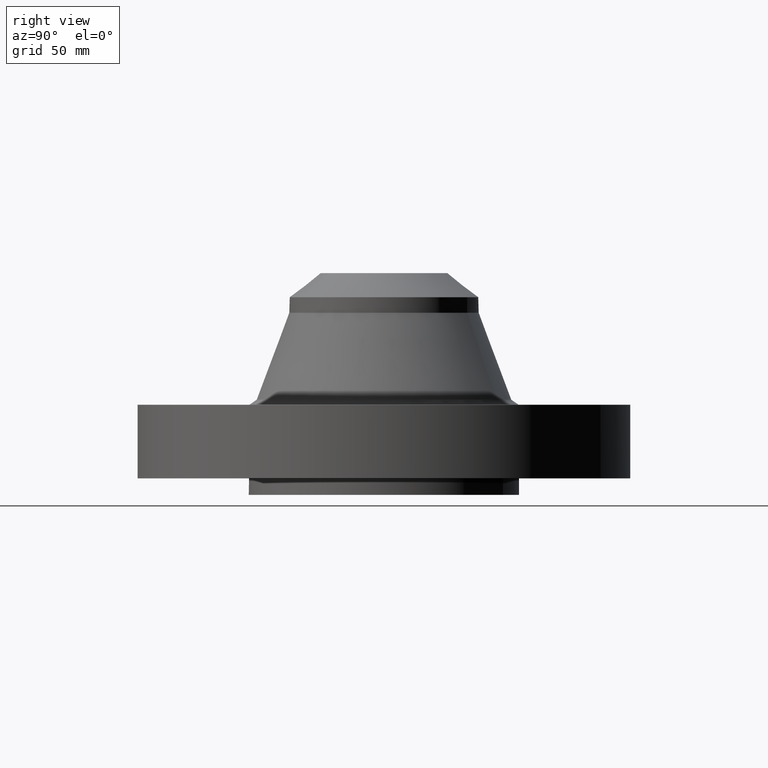
[diagram: clean part render]
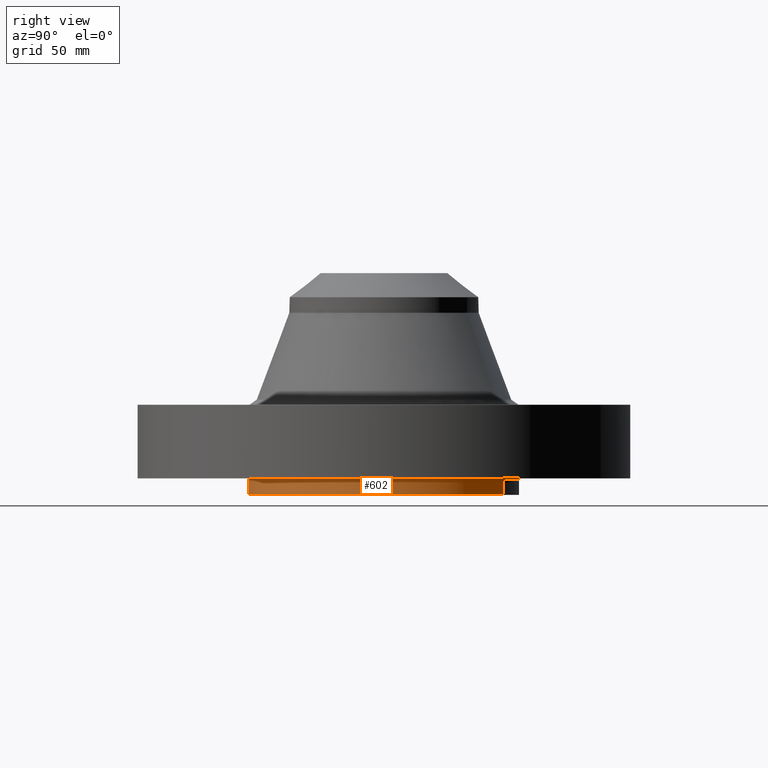
[diagram: same view with one face highlighted and labeled with its STEP entity id]
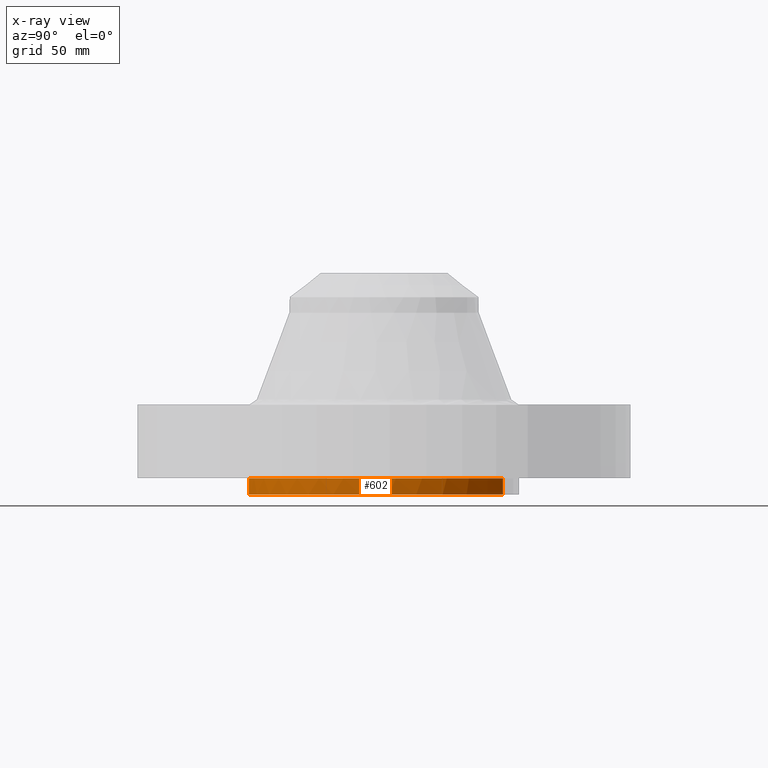
[diagram: x-ray of the same camera — body ghosted, the highlighted face saturated]
A machine part, right view. The second image highlights one B-rep face of the part: STEP entity #602.
The next image is the same camera in x-ray: the body ghosted, the highlighted face saturated — about 0% of this face is hidden behind the body in this view.
In plain terms, the highlighted cylindrical surface (partial cylindrical patch) has radius 52.324 mm, axis along (0, 0, -1).
Its self-contained STEP definition (entity closure, byte-faithful):
#165=AXIS2_PLACEMENT_3D('Circle Axis2P3D',#163,#164,$) ;
#563=AXIS2_PLACEMENT_3D('Cylinder Axis2P3D',#560,#561,#562) ;
#163=CARTESIAN_POINT('Axis2P3D Location',(-3.08534999824E-011,-1.06905910196E-011,0.)) ;
#167=CARTESIAN_POINT('Vertex',(0.98761660953,1.8078200775,-2.75463991075E-011)) ;
#169=CARTESIAN_POINT('Vertex',(-0.98761660953,-1.8078200775,-2.75463991075E-011)) ;
#560=CARTESIAN_POINT('Axis2P3D Location',(0.,0.,1.43500000001)) ;
#566=CARTESIAN_POINT('Control Point',(0.98761660953,1.8078200775,-0.250000000013)) ;
#567=CARTESIAN_POINT('Control Point',(1.27158832326,1.65268562325,-0.250000000012)) ;
#568=CARTESIAN_POINT('Control Point',(1.52509945812,1.44179345339,-0.250000000012)) ;
#569=CARTESIAN_POINT('Control Point',(1.73350329742,1.1830735553,-0.250000000011)) ;
#570=CARTESIAN_POINT('Control Point',(2.03763777846,0.59785921109,-0.25000000001)) ;
#571=CARTESIAN_POINT('Control Point',(2.09791009678,-0.0589062408546,-0.250000000009)) ;
#572=CARTESIAN_POINT('Control Point',(2.0623312704,-0.389212603218,-0.250000000008)) ;
#573=CARTESIAN_POINT('Control Point',(1.86357779311,-1.01807718839,-0.250000000007)) ;
#574=CARTESIAN_POINT('Control Point',(1.44179345339,-1.52509945812,-0.250000000006)) ;
#575=CARTESIAN_POINT('Control Point',(1.1830735553,-1.73350329742,-0.250000000005)) ;
#576=CARTESIAN_POINT('Control Point',(0.59785921109,-2.03763777846,-0.250000000004)) ;
#577=CARTESIAN_POINT('Control Point',(-0.0589062408545,-2.09791009678,-0.250000000003)) ;
#578=CARTESIAN_POINT('Control Point',(-0.389212603218,-2.0623312704,-0.250000000002)) ;
#579=CARTESIAN_POINT('Control Point',(-0.703644895805,-1.96295453176,-0.250000000002)) ;
#580=CARTESIAN_POINT('Control Point',(-0.98761660953,-1.8078200775,-0.250000000001)) ;
#581=CARTESIAN_POINT('Vertex',(0.987616609562,1.80782007754,-0.250000000001)) ;
#583=CARTESIAN_POINT('Vertex',(-0.987616609562,-1.80782007747,-0.250000000001)) ;
#586=CARTESIAN_POINT('Line Origine',(0.98761660953,1.8078200775,-0.125000000006)) ;
#591=CARTESIAN_POINT('Line Origine',(-0.98761660953,-1.8078200775,-0.125000000006)) ;
#164=DIRECTION('Axis2P3D Direction',(0.,0.,-0.0393700787402)) ;
#561=DIRECTION('Axis2P3D Direction',(0.,0.,-0.0393700787402)) ;
#562=DIRECTION('Axis2P3D XDirection',(0.0188750212049,0.0345504945626,0.)) ;
#587=DIRECTION('Vector Direction',(0.,0.,-0.0393700787402)) ;
#592=DIRECTION('Vector Direction',(0.,0.,-0.0393700787402)) ;
#588=VECTOR('Line Direction',#587,0.0393700787402) ;
#593=VECTOR('Line Direction',#592,0.0393700787402) ;
#597=ORIENTED_EDGE('',*,*,#585,.F.) ;
#598=ORIENTED_EDGE('',*,*,#590,.T.) ;
#599=ORIENTED_EDGE('',*,*,#171,.T.) ;
#600=ORIENTED_EDGE('',*,*,#595,.F.) ;
#602=ADVANCED_FACE('PartBody',(#601),#564,.T.) ;
#565=B_SPLINE_CURVE_WITH_KNOTS('',5,(#566,#567,#568,#569,#570,#571,#572,#573,#574,#575,#576,#577,#578,#579,#580),.UNSPECIFIED.,.F.,.U.,(6,3,3,3,6),(-82.1903470036,-41.0951735018,0.,41.0951735018,82.1903470036),.UNSPECIFIED.) ;
#166=CIRCLE('generated circle',#165,2.06000000002) ;
#564=CYLINDRICAL_SURFACE('generated cylinder',#563,2.06000000001) ;
#171=EDGE_CURVE('',#168,#170,#166,.T.) ;
#585=EDGE_CURVE('',#582,#584,#565,.T.) ;
#590=EDGE_CURVE('',#582,#168,#589,.F.) ;
#595=EDGE_CURVE('',#584,#170,#594,.F.) ;
#596=EDGE_LOOP('',(#597,#598,#599,#600)) ;
#601=FACE_OUTER_BOUND('',#596,.T.) ;
#589=LINE('Line',#586,#588) ;
#594=LINE('Line',#591,#593) ;
#168=VERTEX_POINT('',#167) ;
#170=VERTEX_POINT('',#169) ;
#582=VERTEX_POINT('',#581) ;
#584=VERTEX_POINT('',#583) ;